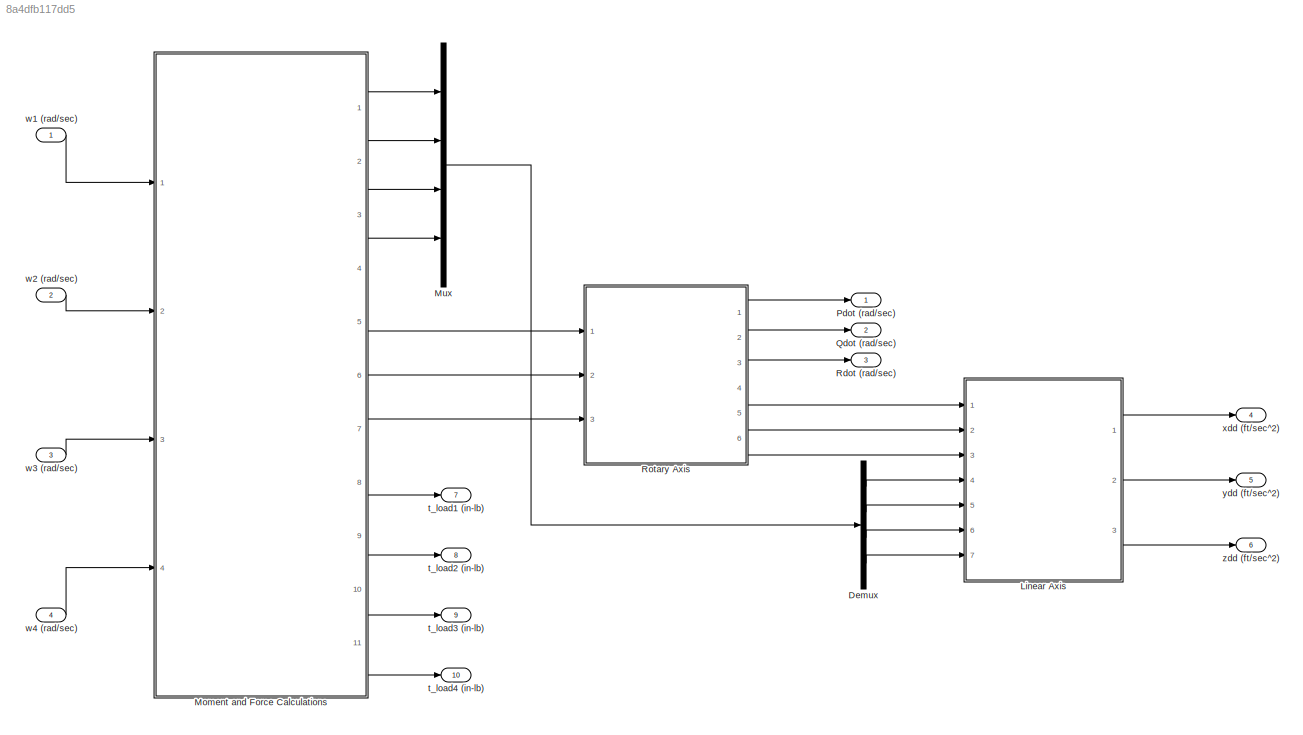
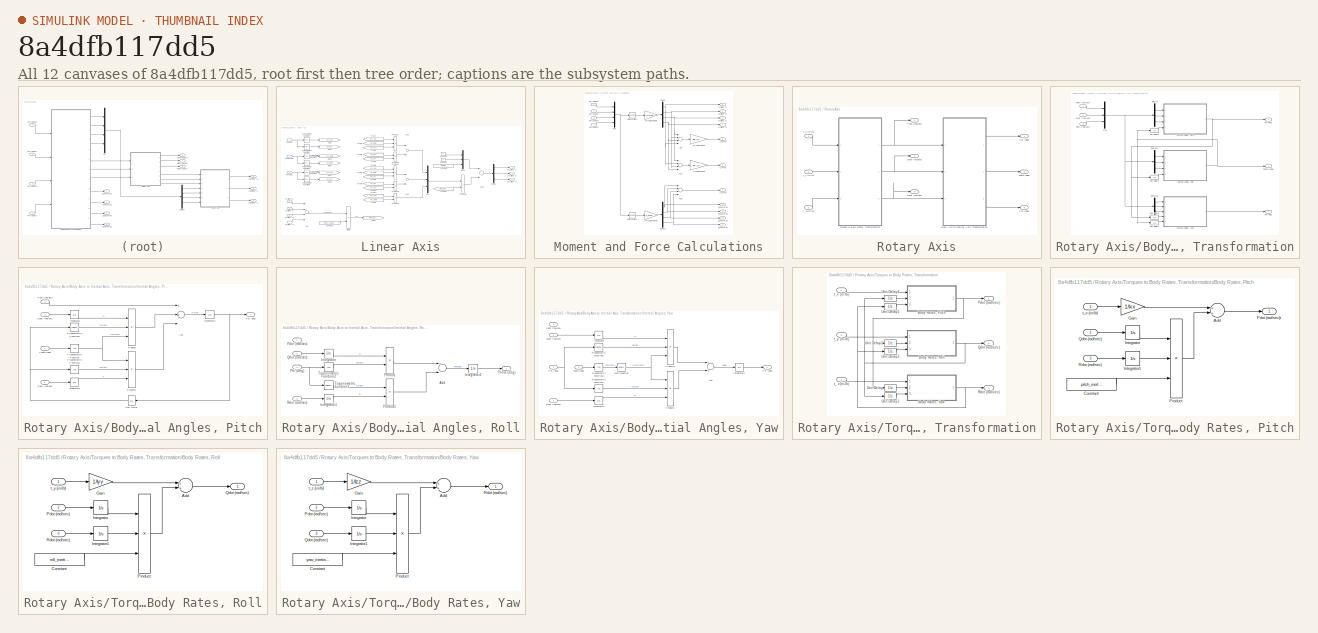
[diagram: thumbnail index - all 12 canvases of the model, root first then tree order]
MODEL slx_8a4dfb117dd5
KIND model
CONFIG AbsTol = auto
CONFIG FixedStep = auto
CONFIG MaxStep = auto
CONFIG MinStep = auto
CONFIG RelTol = 1e-3
CONFIG SampleTimeConstraint = Unconstrained
CONFIG Solver = ode45
CONFIG SolverMode = SingleTasking
CONFIG SolverName = ode45
CONFIG StartTime = 0.0
CONFIG StopTime = 10.0
BLOCK [Demux] Demux
  DisplayOption = bar
  Ports = [1, 4]
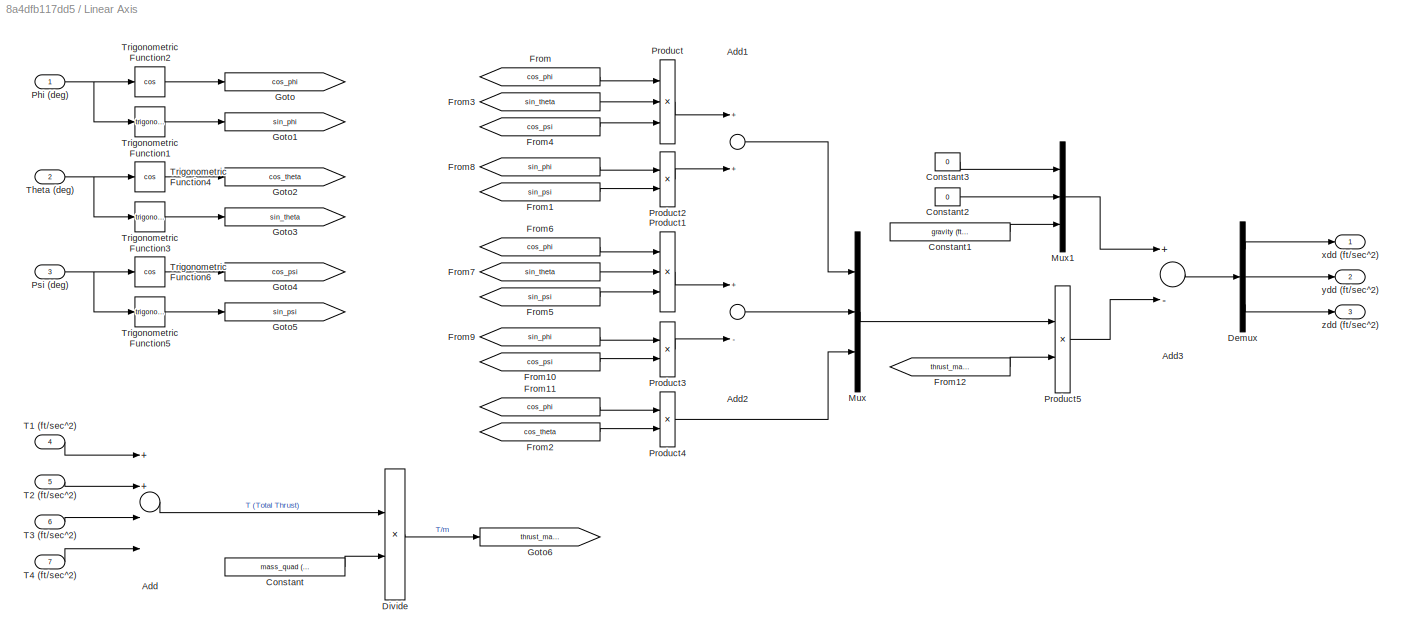
BLOCK [SubSystem] Linear Axis
  Ports = [7, 3]
  RequestExecContextInheritance = off
  Variant = off
BLOCK [Sum] Linear Axis/Add
  InputSameDT = off
  Inputs = 4
  OutDataTypeStr = Inherit: Inherit via internal rule
  Ports = [4, 1]
  SaturateOnIntegerOverflow = off
BLOCK [Sum] Linear Axis/Add1
  InputSameDT = off
  Inputs = 2
  OutDataTypeStr = Inherit: Inherit via internal rule
  Ports = [2, 1]
  SaturateOnIntegerOverflow = off
BLOCK [Sum] Linear Axis/Add2
  InputSameDT = off
  Inputs = +-
  OutDataTypeStr = Inherit: Inherit via internal rule
  Ports = [2, 1]
  SaturateOnIntegerOverflow = off
BLOCK [Sum] Linear Axis/Add3
  InputSameDT = off
  Inputs = +-
  OutDataTypeStr = Inherit: Inherit via internal rule
  Ports = [2, 1]
  SaturateOnIntegerOverflow = off
BLOCK [Constant] Linear Axis/Constant
  Value = mass_quad (lbs)
BLOCK [Constant] Linear Axis/Constant1
  Value = gravity (ft/sec^2)
BLOCK [Constant] Linear Axis/Constant2
  Value = 0
BLOCK [Constant] Linear Axis/Constant3
  Value = 0
BLOCK [Demux] Linear Axis/Demux
  DisplayOption = bar
  Outputs = 3
  Ports = [1, 3]
BLOCK [Product] Linear Axis/Divide
  InputSameDT = off
  Inputs = */
  OutDataTypeStr = Inherit: Inherit via internal rule
  Ports = [2, 1]
  RndMeth = Floor
  SaturateOnIntegerOverflow = off
BLOCK [From] Linear Axis/From
  GotoTag = cos_phi
BLOCK [From] Linear Axis/From1
  GotoTag = sin_psi
BLOCK [From] Linear Axis/From10
  GotoTag = cos_psi
BLOCK [From] Linear Axis/From11
  GotoTag = cos_phi
BLOCK [From] Linear Axis/From12
  GotoTag = thrust_mass_ratio
BLOCK [From] Linear Axis/From2
  GotoTag = cos_theta
BLOCK [From] Linear Axis/From3
  GotoTag = sin_theta
BLOCK [From] Linear Axis/From4
  GotoTag = cos_psi
BLOCK [From] Linear Axis/From5
  GotoTag = sin_psi
BLOCK [From] Linear Axis/From6
  GotoTag = cos_phi
BLOCK [From] Linear Axis/From7
  GotoTag = sin_theta
BLOCK [From] Linear Axis/From8
  GotoTag = sin_phi
BLOCK [From] Linear Axis/From9
  GotoTag = sin_phi
BLOCK [Goto] Linear Axis/Goto
  GotoTag = cos_phi
BLOCK [Goto] Linear Axis/Goto1
  GotoTag = sin_phi
BLOCK [Goto] Linear Axis/Goto2
  GotoTag = cos_theta
BLOCK [Goto] Linear Axis/Goto3
  GotoTag = sin_theta
BLOCK [Goto] Linear Axis/Goto4
  GotoTag = cos_psi
BLOCK [Goto] Linear Axis/Goto5
  GotoTag = sin_psi
BLOCK [Goto] Linear Axis/Goto6
  GotoTag = thrust_mass_ratio
BLOCK [Mux] Linear Axis/Mux
  DisplayOption = bar
  Inputs = 3
  Ports = [3, 1]
BLOCK [Mux] Linear Axis/Mux1
  DisplayOption = bar
  Inputs = 3
  Ports = [3, 1]
BLOCK [Inport] Linear Axis/Phi (deg)
  IconDisplay = Port number
BLOCK [Product] Linear Axis/Product
  InputSameDT = off
  Inputs = 3
  OutDataTypeStr = Inherit: Inherit via internal rule
  Ports = [3, 1]
  RndMeth = Floor
  SaturateOnIntegerOverflow = off
BLOCK [Product] Linear Axis/Product1
  InputSameDT = off
  Inputs = 3
  OutDataTypeStr = Inherit: Inherit via internal rule
  Ports = [3, 1]
  RndMeth = Floor
  SaturateOnIntegerOverflow = off
BLOCK [Product] Linear Axis/Product2
  InputSameDT = off
  OutDataTypeStr = Inherit: Inherit via internal rule
  Ports = [2, 1]
  RndMeth = Floor
  SaturateOnIntegerOverflow = off
BLOCK [Product] Linear Axis/Product3
  InputSameDT = off
  OutDataTypeStr = Inherit: Inherit via internal rule
  Ports = [2, 1]
  RndMeth = Floor
  SaturateOnIntegerOverflow = off
BLOCK [Product] Linear Axis/Product4
  InputSameDT = off
  OutDataTypeStr = Inherit: Inherit via internal rule
  Ports = [2, 1]
  RndMeth = Floor
  SaturateOnIntegerOverflow = off
BLOCK [Product] Linear Axis/Product5
  InputSameDT = off
  OutDataTypeStr = Inherit: Inherit via internal rule
  Ports = [2, 1]
  RndMeth = Floor
  SaturateOnIntegerOverflow = off
BLOCK [Inport] Linear Axis/Psi (deg)
  IconDisplay = Port number
  Port = 3
BLOCK [Inport] Linear Axis/T1 (ft//sec^2)
  IconDisplay = Port number
  Port = 4
BLOCK [Inport] Linear Axis/T2 (ft//sec^2)
  IconDisplay = Port number
  Port = 5
BLOCK [Inport] Linear Axis/T3 (ft//sec^2)
  IconDisplay = Port number
  Port = 6
BLOCK [Inport] Linear Axis/T4 (ft//sec^2)
  IconDisplay = Port number
  Port = 7
BLOCK [Inport] Linear Axis/Theta (deg)
  IconDisplay = Port number
  Port = 2
BLOCK [Trigonometry] Linear Axis/Trigonometric Function1
  Ports = [1, 1]
BLOCK [Trigonometry] Linear Axis/Trigonometric Function2
  Operator = cos
  Ports = [1, 1]
BLOCK [Trigonometry] Linear Axis/Trigonometric Function3
  Ports = [1, 1]
BLOCK [Trigonometry] Linear Axis/Trigonometric Function4
  Operator = cos
  Ports = [1, 1]
BLOCK [Trigonometry] Linear Axis/Trigonometric Function5
  Ports = [1, 1]
BLOCK [Trigonometry] Linear Axis/Trigonometric Function6
  Operator = cos
  Ports = [1, 1]
BLOCK [Outport] Linear Axis/xdd (ft//sec^2)
  IconDisplay = Port number
BLOCK [Outport] Linear Axis/ydd (ft//sec^2)
  IconDisplay = Port number
  Port = 2
BLOCK [Outport] Linear Axis/zdd (ft//sec^2)
  IconDisplay = Port number
  Port = 3
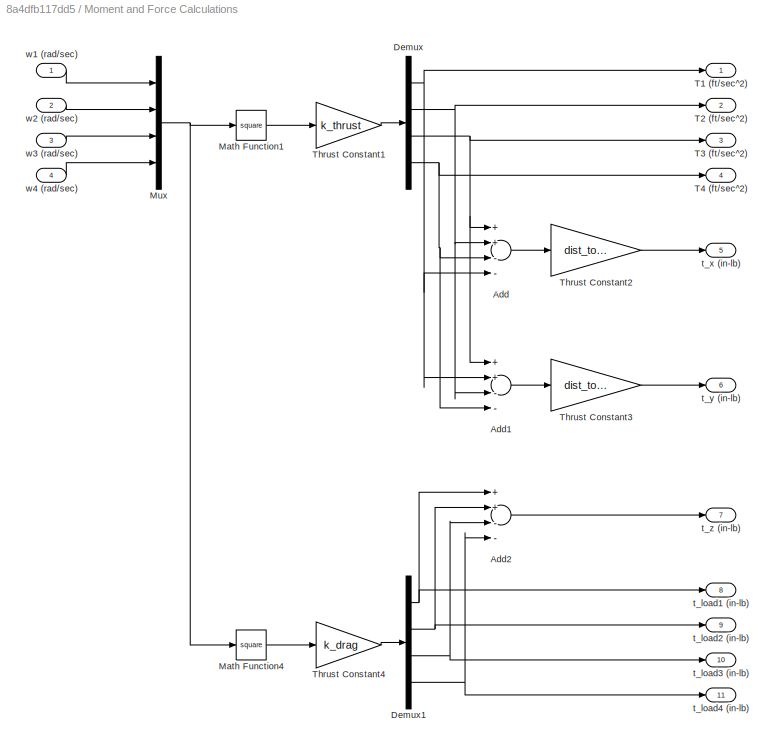
BLOCK [SubSystem] Moment and Force Calculations
  Ports = [4, 11]
  RequestExecContextInheritance = off
  Variant = off
BLOCK [Sum] Moment and Force Calculations/Add
  InputSameDT = off
  Inputs = ++--
  OutDataTypeStr = Inherit: Inherit via internal rule
  Ports = [4, 1]
  SaturateOnIntegerOverflow = off
BLOCK [Sum] Moment and Force Calculations/Add1
  InputSameDT = off
  Inputs = ++--
  OutDataTypeStr = Inherit: Inherit via internal rule
  Ports = [4, 1]
  SaturateOnIntegerOverflow = off
BLOCK [Sum] Moment and Force Calculations/Add2
  InputSameDT = off
  Inputs = ++--
  OutDataTypeStr = Inherit: Inherit via internal rule
  Ports = [4, 1]
  SaturateOnIntegerOverflow = off
BLOCK [Demux] Moment and Force Calculations/Demux
  DisplayOption = bar
  Ports = [1, 4]
BLOCK [Demux] Moment and Force Calculations/Demux1
  DisplayOption = bar
  Ports = [1, 4]
BLOCK [Math] Moment and Force Calculations/Math Function1
  Operator = square
  Ports = [1, 1]
BLOCK [Math] Moment and Force Calculations/Math Function4
  Operator = square
  Ports = [1, 1]
BLOCK [Mux] Moment and Force Calculations/Mux
  DisplayOption = bar
  Ports = [4, 1]
BLOCK [Outport] Moment and Force Calculations/T1 (ft//sec^2)
  IconDisplay = Port number
BLOCK [Outport] Moment and Force Calculations/T2 (ft//sec^2)
  IconDisplay = Port number
  Port = 2
BLOCK [Outport] Moment and Force Calculations/T3 (ft//sec^2)
  IconDisplay = Port number
  Port = 3
BLOCK [Outport] Moment and Force Calculations/T4 (ft//sec^2)
  IconDisplay = Port number
  Port = 4
BLOCK [Gain] Moment and Force Calculations/Thrust Constant1
  Gain = k_thrust
  OutDataTypeStr = Inherit: Inherit via internal rule
  ParamDataTypeStr = Inherit: Inherit via internal rule
  SaturateOnIntegerOverflow = off
BLOCK [Gain] Moment and Force Calculations/Thrust Constant2
  Gain = dist_to_cg_y
  OutDataTypeStr = Inherit: Inherit via internal rule
  ParamDataTypeStr = Inherit: Inherit via internal rule
  SaturateOnIntegerOverflow = off
BLOCK [Gain] Moment and Force Calculations/Thrust Constant3
  Gain = dist_to_cg_y
  OutDataTypeStr = Inherit: Inherit via internal rule
  ParamDataTypeStr = Inherit: Inherit via internal rule
  SaturateOnIntegerOverflow = off
BLOCK [Gain] Moment and Force Calculations/Thrust Constant4
  Gain = k_drag
  OutDataTypeStr = Inherit: Inherit via internal rule
  ParamDataTypeStr = Inherit: Inherit via internal rule
  SaturateOnIntegerOverflow = off
BLOCK [Outport] Moment and Force Calculations/t_load1 (in-lb)
  IconDisplay = Port number
  Port = 8
BLOCK [Outport] Moment and Force Calculations/t_load2 (in-lb)
  IconDisplay = Port number
  Port = 9
BLOCK [Outport] Moment and Force Calculations/t_load3 (in-lb)
  IconDisplay = Port number
  Port = 10
BLOCK [Outport] Moment and Force Calculations/t_load4 (in-lb) 
  IconDisplay = Port number
  Port = 11
BLOCK [Outport] Moment and Force Calculations/t_x (in-lb)
  IconDisplay = Port number
  Port = 5
BLOCK [Outport] Moment and Force Calculations/t_y (in-lb)
  IconDisplay = Port number
  Port = 6
BLOCK [Outport] Moment and Force Calculations/t_z (in-lb)
  IconDisplay = Port number
  Port = 7
BLOCK [Inport] Moment and Force Calculations/w1 (rad//sec)
  IconDisplay = Port number
BLOCK [Inport] Moment and Force Calculations/w2 (rad//sec)
  IconDisplay = Port number
  Port = 2
BLOCK [Inport] Moment and Force Calculations/w3 (rad//sec)
  IconDisplay = Port number
  Port = 3
BLOCK [Inport] Moment and Force Calculations/w4 (rad//sec) 
  IconDisplay = Port number
  Port = 4
BLOCK [Mux] Mux
  DisplayOption = bar
  Ports = [4, 1]
BLOCK [Outport] Pdot (rad//sec)
  IconDisplay = Port number
BLOCK [Outport] Qdot (rad//sec)
  IconDisplay = Port number
  Port = 2
BLOCK [Outport] Rdot (rad//sec)
  IconDisplay = Port number
  Port = 3
BLOCK [SubSystem] Rotary Axis
  Ports = [3, 6]
  RequestExecContextInheritance = off
  Variant = off
BLOCK [SubSystem] Rotary Axis/Body Axis to Inertial Axis, Transformation
  Ports = [3, 3]
  RequestExecContextInheritance = off
  Variant = off
BLOCK [Demux] Rotary Axis/Body Axis to Inertial Axis, Transformation/Demux
  DisplayOption = bar
  Outputs = 3
  Ports = [1, 3]
BLOCK [Demux] Rotary Axis/Body Axis to Inertial Axis, Transformation/Demux1
  DisplayOption = bar
  Outputs = 3
  Ports = [1, 3]
BLOCK [Demux] Rotary Axis/Body Axis to Inertial Axis, Transformation/Demux2
  DisplayOption = bar
  Outputs = 3
  Ports = [1, 3]
BLOCK [SubSystem] Rotary Axis/Body Axis to Inertial Axis, Transformation/Inertial Angles, Pitch
  Ports = [4, 1]
  RequestExecContextInheritance = off
  Variant = off
BLOCK [Sum] Rotary Axis/Body Axis to Inertial Axis, Transformation/Inertial Angles, Pitch/Add
  InputSameDT = off
  Inputs = 3
  OutDataTypeStr = Inherit: Inherit via internal rule
  Ports = [3, 1]
  SaturateOnIntegerOverflow = off
BLOCK [Integrator] Rotary Axis/Body Axis to Inertial Axis, Transformation/Inertial Angles, Pitch/Integrator
  Ports = [1, 1]
BLOCK [Integrator] Rotary Axis/Body Axis to Inertial Axis, Transformation/Inertial Angles, Pitch/Integrator1
  Ports = [1, 1]
BLOCK [Integrator] Rotary Axis/Body Axis to Inertial Axis, Transformation/Inertial Angles, Pitch/Integrator2
  Ports = [1, 1]
BLOCK [Inport] Rotary Axis/Body Axis to Inertial Axis, Transformation/Inertial Angles, Pitch/Pdot (rad//sec)
  IconDisplay = Port number
BLOCK [Outport] Rotary Axis/Body Axis to Inertial Axis, Transformation/Inertial Angles, Pitch/Phi (deg)
  IconDisplay = Port number
BLOCK [Product] Rotary Axis/Body Axis to Inertial Axis, Transformation/Inertial Angles, Pitch/Product
  InputSameDT = off
  Inputs = 3
  OutDataTypeStr = Inherit: Inherit via internal rule
  Ports = [3, 1]
  RndMeth = Floor
  SaturateOnIntegerOverflow = off
BLOCK [Product] Rotary Axis/Body Axis to Inertial Axis, Transformation/Inertial Angles, Pitch/Product1
  InputSameDT = off
  Inputs = 3
  OutDataTypeStr = Inherit: Inherit via internal rule
  Ports = [3, 1]
  RndMeth = Floor
  SaturateOnIntegerOverflow = off
BLOCK [Inport] Rotary Axis/Body Axis to Inertial Axis, Transformation/Inertial Angles, Pitch/Qdot (rad//sec)
  IconDisplay = Port number
  Port = 2
BLOCK [Inport] Rotary Axis/Body Axis to Inertial Axis, Transformation/Inertial Angles, Pitch/Rdot (rad//sec)
  IconDisplay = Port number
  Port = 3
BLOCK [Inport] Rotary Axis/Body Axis to Inertial Axis, Transformation/Inertial Angles, Pitch/Theta (deg)
  IconDisplay = Port number
  Port = 4
BLOCK [Trigonometry] Rotary Axis/Body Axis to Inertial Axis, Transformation/Inertial Angles, Pitch/Trigonometric Function
  Operator = tan
  Ports = [1, 1]
BLOCK [Trigonometry] Rotary Axis/Body Axis to Inertial Axis, Transformation/Inertial Angles, Pitch/Trigonometric Function1
  Operator = cos
  Ports = [1, 1]
BLOCK [Trigonometry] Rotary Axis/Body Axis to Inertial Axis, Transformation/Inertial Angles, Pitch/Trigonometric Function2
  Ports = [1, 1]
BLOCK [UnitDelay] Rotary Axis/Body Axis to Inertial Axis, Transformation/Inertial Angles, Pitch/Unit Delay
  InputProcessing = Elements as channels (sample based)
  SampleTime = -1
BLOCK [SubSystem] Rotary Axis/Body Axis to Inertial Axis, Transformation/Inertial Angles, Roll
  Ports = [4, 1]
  RequestExecContextInheritance = off
  Variant = off
BLOCK [Sum] Rotary Axis/Body Axis to Inertial Axis, Transformation/Inertial Angles, Roll/Add
  InputSameDT = off
  Inputs = +-
  OutDataTypeStr = Inherit: Inherit via internal rule
  Ports = [2, 1]
  SaturateOnIntegerOverflow = off
BLOCK [Integrator] Rotary Axis/Body Axis to Inertial Axis, Transformation/Inertial Angles, Roll/Integrator
  Ports = [1, 1]
BLOCK [Integrator] Rotary Axis/Body Axis to Inertial Axis, Transformation/Inertial Angles, Roll/Integrator1
  Ports = [1, 1]
BLOCK [Integrator] Rotary Axis/Body Axis to Inertial Axis, Transformation/Inertial Angles, Roll/Integrator2
  Ports = [1, 1]
BLOCK [Inport] Rotary Axis/Body Axis to Inertial Axis, Transformation/Inertial Angles, Roll/Pdot (rad//sec)
  IconDisplay = Port number
BLOCK [Inport] Rotary Axis/Body Axis to Inertial Axis, Transformation/Inertial Angles, Roll/Phi (deg)
  IconDisplay = Port number
  Port = 4
BLOCK [Product] Rotary Axis/Body Axis to Inertial Axis, Transformation/Inertial Angles, Roll/Product
  InputSameDT = off
  OutDataTypeStr = Inherit: Inherit via internal rule
  Ports = [2, 1]
  RndMeth = Floor
  SaturateOnIntegerOverflow = off
BLOCK [Product] Rotary Axis/Body Axis to Inertial Axis, Transformation/Inertial Angles, Roll/Product1
  InputSameDT = off
  OutDataTypeStr = Inherit: Inherit via internal rule
  Ports = [2, 1]
  RndMeth = Floor
  SaturateOnIntegerOverflow = off
BLOCK [Inport] Rotary Axis/Body Axis to Inertial Axis, Transformation/Inertial Angles, Roll/Qdot (rad//sec)
  IconDisplay = Port number
  Port = 2
BLOCK [Inport] Rotary Axis/Body Axis to Inertial Axis, Transformation/Inertial Angles, Roll/Rdot (rad//sec)
  IconDisplay = Port number
  Port = 3
BLOCK [Outport] Rotary Axis/Body Axis to Inertial Axis, Transformation/Inertial Angles, Roll/Theta (deg)
  IconDisplay = Port number
BLOCK [Trigonometry] Rotary Axis/Body Axis to Inertial Axis, Transformation/Inertial Angles, Roll/Trigonometric Function1
  Ports = [1, 1]
BLOCK [Trigonometry] Rotary Axis/Body Axis to Inertial Axis, Transformation/Inertial Angles, Roll/Trigonometric Function2
  Operator = cos
  Ports = [1, 1]
BLOCK [SubSystem] Rotary Axis/Body Axis to Inertial Axis, Transformation/Inertial Angles, Yaw
  Ports = [5, 1]
  RequestExecContextInheritance = off
  Variant = off
BLOCK [Sum] Rotary Axis/Body Axis to Inertial Axis, Transformation/Inertial Angles, Yaw/Add
  InputSameDT = off
  Inputs = 2
  OutDataTypeStr = Inherit: Inherit via internal rule
  Ports = [2, 1]
  SaturateOnIntegerOverflow = off
BLOCK [Integrator] Rotary Axis/Body Axis to Inertial Axis, Transformation/Inertial Angles, Yaw/Integrator
  Ports = [1, 1]
BLOCK [Integrator] Rotary Axis/Body Axis to Inertial Axis, Transformation/Inertial Angles, Yaw/Integrator1
  Ports = [1, 1]
BLOCK [Integrator] Rotary Axis/Body Axis to Inertial Axis, Transformation/Inertial Angles, Yaw/Integrator2
  Ports = [1, 1]
BLOCK [Math] Rotary Axis/Body Axis to Inertial Axis, Transformation/Inertial Angles, Yaw/Math Function
  Operator = reciprocal
  Ports = [1, 1]
BLOCK [Inport] Rotary Axis/Body Axis to Inertial Axis, Transformation/Inertial Angles, Yaw/Pdot (rad//sec)
  IconDisplay = Port number
BLOCK [Inport] Rotary Axis/Body Axis to Inertial Axis, Transformation/Inertial Angles, Yaw/Phi (deg)
  IconDisplay = Port number
  Port = 4
BLOCK [Product] Rotary Axis/Body Axis to Inertial Axis, Transformation/Inertial Angles, Yaw/Product1
  InputSameDT = off
  Inputs = 3
  OutDataTypeStr = Inherit: Inherit via internal rule
  Ports = [3, 1]
  RndMeth = Floor
  SaturateOnIntegerOverflow = off
BLOCK [Product] Rotary Axis/Body Axis to Inertial Axis, Transformation/Inertial Angles, Yaw/Product2
  InputSameDT = off
  Inputs = 3
  OutDataTypeStr = Inherit: Inherit via internal rule
  Ports = [3, 1]
  RndMeth = Floor
  SaturateOnIntegerOverflow = off
BLOCK [Outport] Rotary Axis/Body Axis to Inertial Axis, Transformation/Inertial Angles, Yaw/Psi (deg)
  IconDisplay = Port number
BLOCK [Inport] Rotary Axis/Body Axis to Inertial Axis, Transformation/Inertial Angles, Yaw/Qdot (rad//sec)
  IconDisplay = Port number
  Port = 2
BLOCK [Inport] Rotary Axis/Body Axis to Inertial Axis, Transformation/Inertial Angles, Yaw/Rdot (rad//sec)
  IconDisplay = Port number
  Port = 3
BLOCK [Inport] Rotary Axis/Body Axis to Inertial Axis, Transformation/Inertial Angles, Yaw/Theta (deg)
  IconDisplay = Port number
  Port = 5
BLOCK [Trigonometry] Rotary Axis/Body Axis to Inertial Axis, Transformation/Inertial Angles, Yaw/Trigonometric Function1
  Operator = cos
  Ports = [1, 1]
BLOCK [Trigonometry] Rotary Axis/Body Axis to Inertial Axis, Transformation/Inertial Angles, Yaw/Trigonometric Function2
  Ports = [1, 1]
BLOCK [Trigonometry] Rotary Axis/Body Axis to Inertial Axis, Transformation/Inertial Angles, Yaw/Trigonometric Function3
  Operator = cos
  Ports = [1, 1]
BLOCK [Mux] Rotary Axis/Body Axis to Inertial Axis, Transformation/Mux
  DisplayOption = bar
  Inputs = 3
  Ports = [3, 1]
BLOCK [Inport] Rotary Axis/Body Axis to Inertial Axis, Transformation/Pdot (rad//sec)
  IconDisplay = Port number
BLOCK [Outport] Rotary Axis/Body Axis to Inertial Axis, Transformation/Phi (deg)
  IconDisplay = Port number
BLOCK [Outport] Rotary Axis/Body Axis to Inertial Axis, Transformation/Psi (deg)
  IconDisplay = Port number
  Port = 3
BLOCK [Inport] Rotary Axis/Body Axis to Inertial Axis, Transformation/Qdot (rad//sec)
  IconDisplay = Port number
  Port = 2
BLOCK [Inport] Rotary Axis/Body Axis to Inertial Axis, Transformation/Rdot (rad//sec)
  IconDisplay = Port number
  Port = 3
BLOCK [Outport] Rotary Axis/Body Axis to Inertial Axis, Transformation/Theta (deg)
  IconDisplay = Port number
  Port = 2
BLOCK [UnitDelay] Rotary Axis/Body Axis to Inertial Axis, Transformation/Unit Delay1
  InputProcessing = Elements as channels (sample based)
  SampleTime = -1
BLOCK [UnitDelay] Rotary Axis/Body Axis to Inertial Axis, Transformation/Unit Delay2
  InputProcessing = Elements as channels (sample based)
  SampleTime = -1
BLOCK [UnitDelay] Rotary Axis/Body Axis to Inertial Axis, Transformation/Unit Delay3
  InputProcessing = Elements as channels (sample based)
  SampleTime = -1
BLOCK [UnitDelay] Rotary Axis/Body Axis to Inertial Axis, Transformation/Unit Delay4
  InputProcessing = Elements as channels (sample based)
  SampleTime = -1
BLOCK [Outport] Rotary Axis/Pdot (rad//sec)
  IconDisplay = Port number
BLOCK [Outport] Rotary Axis/Phi (deg)
  IconDisplay = Port number
  Port = 4
BLOCK [Outport] Rotary Axis/Psi (deg)
  IconDisplay = Port number
  Port = 6
BLOCK [Outport] Rotary Axis/Qdot (rad//sec)
  IconDisplay = Port number
  Port = 2
BLOCK [Outport] Rotary Axis/Rdot (rad//sec)
  IconDisplay = Port number
  Port = 3
BLOCK [Outport] Rotary Axis/Theta (deg)
  IconDisplay = Port number
  Port = 5
BLOCK [SubSystem] Rotary Axis/Torques to Body Rates, Transformation
  Ports = [3, 3]
  RequestExecContextInheritance = off
  Variant = off
BLOCK [SubSystem] Rotary Axis/Torques to Body Rates, Transformation/Body Rates, Pitch
  Ports = [3, 1]
  RequestExecContextInheritance = off
  Variant = off
BLOCK [Sum] Rotary Axis/Torques to Body Rates, Transformation/Body Rates, Pitch/Add
  InputSameDT = off
  Inputs = 2
  OutDataTypeStr = Inherit: Inherit via internal rule
  Ports = [2, 1]
  SaturateOnIntegerOverflow = off
BLOCK [Constant] Rotary Axis/Torques to Body Rates, Transformation/Body Rates, Pitch/Constant
  Value = pitch_inertia_ratio
BLOCK [Gain] Rotary Axis/Torques to Body Rates, Transformation/Body Rates, Pitch/Gain
  Gain = 1/Ixx
  OutDataTypeStr = Inherit: Inherit via internal rule
  ParamDataTypeStr = Inherit: Inherit via internal rule
  SaturateOnIntegerOverflow = off
BLOCK [Integrator] Rotary Axis/Torques to Body Rates, Transformation/Body Rates, Pitch/Integrator
  Ports = [1, 1]
BLOCK [Integrator] Rotary Axis/Torques to Body Rates, Transformation/Body Rates, Pitch/Integrator1
  Ports = [1, 1]
BLOCK [Outport] Rotary Axis/Torques to Body Rates, Transformation/Body Rates, Pitch/Pdot (rad//sec)t
  IconDisplay = Port number
BLOCK [Product] Rotary Axis/Torques to Body Rates, Transformation/Body Rates, Pitch/Product
  InputSameDT = off
  Inputs = 3
  OutDataTypeStr = Inherit: Inherit via internal rule
  Ports = [3, 1]
  RndMeth = Floor
  SaturateOnIntegerOverflow = off
BLOCK [Inport] Rotary Axis/Torques to Body Rates, Transformation/Body Rates, Pitch/Qdot (rad//sec)
  IconDisplay = Port number
  Port = 2
BLOCK [Inport] Rotary Axis/Torques to Body Rates, Transformation/Body Rates, Pitch/Rdot (rad//sec)
  IconDisplay = Port number
  Port = 3
BLOCK [Inport] Rotary Axis/Torques to Body Rates, Transformation/Body Rates, Pitch/t_x (in-lb)
  IconDisplay = Port number
BLOCK [SubSystem] Rotary Axis/Torques to Body Rates, Transformation/Body Rates, Roll
  Ports = [3, 1]
  RequestExecContextInheritance = off
  Variant = off
BLOCK [Sum] Rotary Axis/Torques to Body Rates, Transformation/Body Rates, Roll/Add
  InputSameDT = off
  Inputs = 2
  OutDataTypeStr = Inherit: Inherit via internal rule
  Ports = [2, 1]
  SaturateOnIntegerOverflow = off
BLOCK [Constant] Rotary Axis/Torques to Body Rates, Transformation/Body Rates, Roll/Constant
  Value = roll_inertia_ratio
BLOCK [Gain] Rotary Axis/Torques to Body Rates, Transformation/Body Rates, Roll/Gain
  Gain = 1/Iyy
  OutDataTypeStr = Inherit: Inherit via internal rule
  ParamDataTypeStr = Inherit: Inherit via internal rule
  SaturateOnIntegerOverflow = off
BLOCK [Integrator] Rotary Axis/Torques to Body Rates, Transformation/Body Rates, Roll/Integrator
  Ports = [1, 1]
BLOCK [Integrator] Rotary Axis/Torques to Body Rates, Transformation/Body Rates, Roll/Integrator1
  Ports = [1, 1]
BLOCK [Inport] Rotary Axis/Torques to Body Rates, Transformation/Body Rates, Roll/Pdot (rad//sec)
  IconDisplay = Port number
  Port = 2
BLOCK [Product] Rotary Axis/Torques to Body Rates, Transformation/Body Rates, Roll/Product
  InputSameDT = off
  Inputs = 3
  OutDataTypeStr = Inherit: Inherit via internal rule
  Ports = [3, 1]
  RndMeth = Floor
  SaturateOnIntegerOverflow = off
BLOCK [Outport] Rotary Axis/Torques to Body Rates, Transformation/Body Rates, Roll/Qdot (rad//sec)
  IconDisplay = Port number
BLOCK [Inport] Rotary Axis/Torques to Body Rates, Transformation/Body Rates, Roll/Rdot (rad//sec)
  IconDisplay = Port number
  Port = 3
BLOCK [Inport] Rotary Axis/Torques to Body Rates, Transformation/Body Rates, Roll/t_y (in-lb)
  IconDisplay = Port number
BLOCK [SubSystem] Rotary Axis/Torques to Body Rates, Transformation/Body Rates, Yaw
  Ports = [3, 1]
  RequestExecContextInheritance = off
  Variant = off
BLOCK [Sum] Rotary Axis/Torques to Body Rates, Transformation/Body Rates, Yaw/Add
  InputSameDT = off
  Inputs = 2
  OutDataTypeStr = Inherit: Inherit via internal rule
  Ports = [2, 1]
  SaturateOnIntegerOverflow = off
BLOCK [Constant] Rotary Axis/Torques to Body Rates, Transformation/Body Rates, Yaw/Constant
  Value = yaw_inertia_ratio
BLOCK [Gain] Rotary Axis/Torques to Body Rates, Transformation/Body Rates, Yaw/Gain
  Gain = 1/Izz
  OutDataTypeStr = Inherit: Inherit via internal rule
  ParamDataTypeStr = Inherit: Inherit via internal rule
  SaturateOnIntegerOverflow = off
BLOCK [Integrator] Rotary Axis/Torques to Body Rates, Transformation/Body Rates, Yaw/Integrator
  Ports = [1, 1]
BLOCK [Integrator] Rotary Axis/Torques to Body Rates, Transformation/Body Rates, Yaw/Integrator1
  Ports = [1, 1]
BLOCK [Inport] Rotary Axis/Torques to Body Rates, Transformation/Body Rates, Yaw/Pdot (rad//sec)
  IconDisplay = Port number
  Port = 2
BLOCK [Product] Rotary Axis/Torques to Body Rates, Transformation/Body Rates, Yaw/Product
  InputSameDT = off
  Inputs = 3
  OutDataTypeStr = Inherit: Inherit via internal rule
  Ports = [3, 1]
  RndMeth = Floor
  SaturateOnIntegerOverflow = off
BLOCK [Inport] Rotary Axis/Torques to Body Rates, Transformation/Body Rates, Yaw/Qdot (rad//sec)
  IconDisplay = Port number
  Port = 3
BLOCK [Outport] Rotary Axis/Torques to Body Rates, Transformation/Body Rates, Yaw/Rdot (rad//sec)
  IconDisplay = Port number
BLOCK [Inport] Rotary Axis/Torques to Body Rates, Transformation/Body Rates, Yaw/t_z (in-lb)
  IconDisplay = Port number
BLOCK [Outport] Rotary Axis/Torques to Body Rates, Transformation/Pdot (rad//sec)
  IconDisplay = Port number
BLOCK [Outport] Rotary Axis/Torques to Body Rates, Transformation/Qdot (rad//sec)
  IconDisplay = Port number
  Port = 2
BLOCK [Outport] Rotary Axis/Torques to Body Rates, Transformation/Rdot (rad//sec)
  IconDisplay = Port number
  Port = 3
BLOCK [UnitDelay] Rotary Axis/Torques to Body Rates, Transformation/Unit Delay
  InputProcessing = Elements as channels (sample based)
  SampleTime = -1
BLOCK [UnitDelay] Rotary Axis/Torques to Body Rates, Transformation/Unit Delay1
  InputProcessing = Elements as channels (sample based)
  SampleTime = -1
BLOCK [UnitDelay] Rotary Axis/Torques to Body Rates, Transformation/Unit Delay2
  InputProcessing = Elements as channels (sample based)
  SampleTime = -1
BLOCK [UnitDelay] Rotary Axis/Torques to Body Rates, Transformation/Unit Delay3
  InputProcessing = Elements as channels (sample based)
  SampleTime = -1
BLOCK [UnitDelay] Rotary Axis/Torques to Body Rates, Transformation/Unit Delay4
  InputProcessing = Elements as channels (sample based)
  SampleTime = -1
BLOCK [UnitDelay] Rotary Axis/Torques to Body Rates, Transformation/Unit Delay5
  InputProcessing = Elements as channels (sample based)
  SampleTime = -1
BLOCK [Inport] Rotary Axis/Torques to Body Rates, Transformation/t_ z(in-lb)
  IconDisplay = Port number
  Port = 3
BLOCK [Inport] Rotary Axis/Torques to Body Rates, Transformation/t_x (in-lb)
  IconDisplay = Port number
BLOCK [Inport] Rotary Axis/Torques to Body Rates, Transformation/t_y (in-lb)
  IconDisplay = Port number
  Port = 2
BLOCK [Inport] Rotary Axis/t_ z(in-lb)
  IconDisplay = Port number
  Port = 3
BLOCK [Inport] Rotary Axis/t_x (in-lb)
  IconDisplay = Port number
BLOCK [Inport] Rotary Axis/t_y (in-lb)
  IconDisplay = Port number
  Port = 2
BLOCK [Outport] t_load1 (in-lb)
  IconDisplay = Port number
  Port = 7
BLOCK [Outport] t_load2 (in-lb)
  IconDisplay = Port number
  Port = 8
BLOCK [Outport] t_load3 (in-lb)
  IconDisplay = Port number
  Port = 9
BLOCK [Outport] t_load4 (in-lb) 
  IconDisplay = Port number
  Port = 10
BLOCK [Inport] w1 (rad//sec)
  IconDisplay = Port number
BLOCK [Inport] w2 (rad//sec)
  IconDisplay = Port number
  Port = 2
BLOCK [Inport] w3 (rad//sec)
  IconDisplay = Port number
  Port = 3
BLOCK [Inport] w4 (rad//sec) 
  IconDisplay = Port number
  Port = 4
BLOCK [Outport] xdd (ft//sec^2)
  IconDisplay = Port number
  Port = 4
BLOCK [Outport] ydd (ft//sec^2)
  IconDisplay = Port number
  Port = 5
BLOCK [Outport] zdd (ft//sec^2)
  IconDisplay = Port number
  Port = 6
LINE Demux:1 -> Linear Axis:4
LINE Demux:2 -> Linear Axis:5
LINE Demux:3 -> Linear Axis:6
LINE Demux:4 -> Linear Axis:7
LINE Linear Axis/Add1:1 -> Linear Axis/Mux:1
LINE Linear Axis/Add2:1 -> Linear Axis/Mux:2
LINE Linear Axis/Add3:1 -> Linear Axis/Demux:1
LINE Linear Axis/Add:1 -> Linear Axis/Divide:1
LINE Linear Axis/Constant1:1 -> Linear Axis/Mux1:3
LINE Linear Axis/Constant2:1 -> Linear Axis/Mux1:2
LINE Linear Axis/Constant3:1 -> Linear Axis/Mux1:1
LINE Linear Axis/Constant:1 -> Linear Axis/Divide:2
LINE Linear Axis/Demux:1 -> Linear Axis/xdd (ft//sec^2):1
LINE Linear Axis/Demux:2 -> Linear Axis/ydd (ft//sec^2):1
LINE Linear Axis/Demux:3 -> Linear Axis/zdd (ft//sec^2):1
LINE Linear Axis/Divide:1 -> Linear Axis/Goto6:1
LINE Linear Axis/From10:1 -> Linear Axis/Product3:2
LINE Linear Axis/From11:1 -> Linear Axis/Product4:1
LINE Linear Axis/From12:1 -> Linear Axis/Product5:2
LINE Linear Axis/From1:1 -> Linear Axis/Product2:2
LINE Linear Axis/From2:1 -> Linear Axis/Product4:2
LINE Linear Axis/From3:1 -> Linear Axis/Product:2
LINE Linear Axis/From4:1 -> Linear Axis/Product:3
LINE Linear Axis/From5:1 -> Linear Axis/Product1:3
LINE Linear Axis/From6:1 -> Linear Axis/Product1:1
LINE Linear Axis/From7:1 -> Linear Axis/Product1:2
LINE Linear Axis/From8:1 -> Linear Axis/Product2:1
LINE Linear Axis/From9:1 -> Linear Axis/Product3:1
LINE Linear Axis/From:1 -> Linear Axis/Product:1
LINE Linear Axis/Mux1:1 -> Linear Axis/Add3:1
LINE Linear Axis/Mux:1 -> Linear Axis/Product5:1
NET Linear Axis/Phi (deg):1 -> Linear Axis/Trigonometric Function1:1, Linear Axis/Trigonometric Function2:1
LINE Linear Axis/Product1:1 -> Linear Axis/Add2:1
LINE Linear Axis/Product2:1 -> Linear Axis/Add1:2
LINE Linear Axis/Product3:1 -> Linear Axis/Add2:2
LINE Linear Axis/Product4:1 -> Linear Axis/Mux:3
LINE Linear Axis/Product5:1 -> Linear Axis/Add3:2
LINE Linear Axis/Product:1 -> Linear Axis/Add1:1
NET Linear Axis/Psi (deg):1 -> Linear Axis/Trigonometric Function5:1, Linear Axis/Trigonometric Function6:1
LINE Linear Axis/T1 (ft//sec^2):1 -> Linear Axis/Add:1
LINE Linear Axis/T2 (ft//sec^2):1 -> Linear Axis/Add:2
LINE Linear Axis/T3 (ft//sec^2):1 -> Linear Axis/Add:3
LINE Linear Axis/T4 (ft//sec^2):1 -> Linear Axis/Add:4
NET Linear Axis/Theta (deg):1 -> Linear Axis/Trigonometric Function3:1, Linear Axis/Trigonometric Function4:1
LINE Linear Axis/Trigonometric Function1:1 -> Linear Axis/Goto1:1
LINE Linear Axis/Trigonometric Function2:1 -> Linear Axis/Goto:1
LINE Linear Axis/Trigonometric Function3:1 -> Linear Axis/Goto3:1
LINE Linear Axis/Trigonometric Function4:1 -> Linear Axis/Goto2:1
LINE Linear Axis/Trigonometric Function5:1 -> Linear Axis/Goto5:1
LINE Linear Axis/Trigonometric Function6:1 -> Linear Axis/Goto4:1
LINE Linear Axis:1 -> xdd (ft//sec^2):1
LINE Linear Axis:2 -> ydd (ft//sec^2):1
LINE Linear Axis:3 -> zdd (ft//sec^2):1
LINE Moment and Force Calculations/Add1:1 -> Moment and Force Calculations/Thrust Constant3:1
LINE Moment and Force Calculations/Add2:1 -> Moment and Force Calculations/t_z (in-lb):1
LINE Moment and Force Calculations/Add:1 -> Moment and Force Calculations/Thrust Constant2:1
NET Moment and Force Calculations/Demux1:1 -> Moment and Force Calculations/Add2:1, Moment and Force Calculations/t_load1 (in-lb):1
NET Moment and Force Calculations/Demux1:2 -> Moment and Force Calculations/Add2:2, Moment and Force Calculations/t_load2 (in-lb):1
NET Moment and Force Calculations/Demux1:3 -> Moment and Force Calculations/Add2:3, Moment and Force Calculations/t_load3 (in-lb):1
NET Moment and Force Calculations/Demux1:4 -> Moment and Force Calculations/Add2:4, Moment and Force Calculations/t_load4 (in-lb) :1
NET Moment and Force Calculations/Demux:1 -> Moment and Force Calculations/Add1:2, Moment and Force Calculations/Add:4, Moment and Force Calculations/T1 (ft//sec^2):1
NET Moment and Force Calculations/Demux:2 -> Moment and Force Calculations/Add1:3, Moment and Force Calculations/Add:2, Moment and Force Calculations/T2 (ft//sec^2):1
NET Moment and Force Calculations/Demux:3 -> Moment and Force Calculations/Add1:1, Moment and Force Calculations/Add:1, Moment and Force Calculations/T3 (ft//sec^2):1
NET Moment and Force Calculations/Demux:4 -> Moment and Force Calculations/Add1:4, Moment and Force Calculations/Add:3, Moment and Force Calculations/T4 (ft//sec^2):1
LINE Moment and Force Calculations/Math Function1:1 -> Moment and Force Calculations/Thrust Constant1:1
LINE Moment and Force Calculations/Math Function4:1 -> Moment and Force Calculations/Thrust Constant4:1
NET Moment and Force Calculations/Mux:1 -> Moment and Force Calculations/Math Function1:1, Moment and Force Calculations/Math Function4:1
LINE Moment and Force Calculations/Thrust Constant1:1 -> Moment and Force Calculations/Demux:1
LINE Moment and Force Calculations/Thrust Constant2:1 -> Moment and Force Calculations/t_x (in-lb):1
LINE Moment and Force Calculations/Thrust Constant3:1 -> Moment and Force Calculations/t_y (in-lb):1
LINE Moment and Force Calculations/Thrust Constant4:1 -> Moment and Force Calculations/Demux1:1
LINE Moment and Force Calculations/w1 (rad//sec):1 -> Moment and Force Calculations/Mux:1
LINE Moment and Force Calculations/w2 (rad//sec):1 -> Moment and Force Calculations/Mux:2
LINE Moment and Force Calculations/w3 (rad//sec):1 -> Moment and Force Calculations/Mux:3
LINE Moment and Force Calculations/w4 (rad//sec) :1 -> Moment and Force Calculations/Mux:4
LINE Moment and Force Calculations:1 -> Mux:1
LINE Moment and Force Calculations:10 -> t_load3 (in-lb):1
LINE Moment and Force Calculations:11 -> t_load4 (in-lb) :1
LINE Moment and Force Calculations:2 -> Mux:2
LINE Moment and Force Calculations:3 -> Mux:3
LINE Moment and Force Calculations:4 -> Mux:4
LINE Moment and Force Calculations:5 -> Rotary Axis:1
LINE Moment and Force Calculations:6 -> Rotary Axis:2
LINE Moment and Force Calculations:7 -> Rotary Axis:3
LINE Moment and Force Calculations:8 -> t_load1 (in-lb):1
LINE Moment and Force Calculations:9 -> t_load2 (in-lb):1
LINE Mux:1 -> Demux:1
LINE Rotary Axis/Body Axis to Inertial Axis, Transformation/Demux1:1 -> Rotary Axis/Body Axis to Inertial Axis, Transformation/Inertial Angles, Roll:1
LINE Rotary Axis/Body Axis to Inertial Axis, Transformation/Demux1:2 -> Rotary Axis/Body Axis to Inertial Axis, Transformation/Inertial Angles, Roll:2
LINE Rotary Axis/Body Axis to Inertial Axis, Transformation/Demux1:3 -> Rotary Axis/Body Axis to Inertial Axis, Transformation/Inertial Angles, Roll:3
LINE Rotary Axis/Body Axis to Inertial Axis, Transformation/Demux2:1 -> Rotary Axis/Body Axis to Inertial Axis, Transformation/Inertial Angles, Yaw:1
LINE Rotary Axis/Body Axis to Inertial Axis, Transformation/Demux2:2 -> Rotary Axis/Body Axis to Inertial Axis, Transformation/Inertial Angles, Yaw:2
LINE Rotary Axis/Body Axis to Inertial Axis, Transformation/Demux2:3 -> Rotary Axis/Body Axis to Inertial Axis, Transformation/Inertial Angles, Yaw:3
LINE Rotary Axis/Body Axis to Inertial Axis, Transformation/Demux:1 -> Rotary Axis/Body Axis to Inertial Axis, Transformation/Inertial Angles, Pitch:1
LINE Rotary Axis/Body Axis to Inertial Axis, Transformation/Demux:2 -> Rotary Axis/Body Axis to Inertial Axis, Transformation/Inertial Angles, Pitch:2
LINE Rotary Axis/Body Axis to Inertial Axis, Transformation/Demux:3 -> Rotary Axis/Body Axis to Inertial Axis, Transformation/Inertial Angles, Pitch:3
LINE Rotary Axis/Body Axis to Inertial Axis, Transformation/Inertial Angles, Pitch/Add:1 -> Rotary Axis/Body Axis to Inertial Axis, Transformation/Inertial Angles, Pitch/Integrator2:1
LINE Rotary Axis/Body Axis to Inertial Axis, Transformation/Inertial Angles, Pitch/Integrator1:1 -> Rotary Axis/Body Axis to Inertial Axis, Transformation/Inertial Angles, Pitch/Product1:3
NET Rotary Axis/Body Axis to Inertial Axis, Transformation/Inertial Angles, Pitch/Integrator2:1 -> Rotary Axis/Body Axis to Inertial Axis, Transformation/Inertial Angles, Pitch/Phi (deg):1, Rotary Axis/Body Axis to Inertial Axis, Transformation/Inertial Angles, Pitch/Unit Delay:1
LINE Rotary Axis/Body Axis to Inertial Axis, Transformation/Inertial Angles, Pitch/Integrator:1 -> Rotary Axis/Body Axis to Inertial Axis, Transformation/Inertial Angles, Pitch/Product:1
LINE Rotary Axis/Body Axis to Inertial Axis, Transformation/Inertial Angles, Pitch/Pdot (rad//sec):1 -> Rotary Axis/Body Axis to Inertial Axis, Transformation/Inertial Angles, Pitch/Add:1
LINE Rotary Axis/Body Axis to Inertial Axis, Transformation/Inertial Angles, Pitch/Product1:1 -> Rotary Axis/Body Axis to Inertial Axis, Transformation/Inertial Angles, Pitch/Add:3
LINE Rotary Axis/Body Axis to Inertial Axis, Transformation/Inertial Angles, Pitch/Product:1 -> Rotary Axis/Body Axis to Inertial Axis, Transformation/Inertial Angles, Pitch/Add:2
LINE Rotary Axis/Body Axis to Inertial Axis, Transformation/Inertial Angles, Pitch/Qdot (rad//sec):1 -> Rotary Axis/Body Axis to Inertial Axis, Transformation/Inertial Angles, Pitch/Integrator:1
LINE Rotary Axis/Body Axis to Inertial Axis, Transformation/Inertial Angles, Pitch/Rdot (rad//sec):1 -> Rotary Axis/Body Axis to Inertial Axis, Transformation/Inertial Angles, Pitch/Integrator1:1
LINE Rotary Axis/Body Axis to Inertial Axis, Transformation/Inertial Angles, Pitch/Theta (deg):1 -> Rotary Axis/Body Axis to Inertial Axis, Transformation/Inertial Angles, Pitch/Trigonometric Function:1
LINE Rotary Axis/Body Axis to Inertial Axis, Transformation/Inertial Angles, Pitch/Trigonometric Function1:1 -> Rotary Axis/Body Axis to Inertial Axis, Transformation/Inertial Angles, Pitch/Product1:2
LINE Rotary Axis/Body Axis to Inertial Axis, Transformation/Inertial Angles, Pitch/Trigonometric Function2:1 -> Rotary Axis/Body Axis to Inertial Axis, Transformation/Inertial Angles, Pitch/Product:2
NET Rotary Axis/Body Axis to Inertial Axis, Transformation/Inertial Angles, Pitch/Trigonometric Function:1 -> Rotary Axis/Body Axis to Inertial Axis, Transformation/Inertial Angles, Pitch/Product1:1, Rotary Axis/Body Axis to Inertial Axis, Transformation/Inertial Angles, Pitch/Product:3
NET Rotary Axis/Body Axis to Inertial Axis, Transformation/Inertial Angles, Pitch/Unit Delay:1 -> Rotary Axis/Body Axis to Inertial Axis, Transformation/Inertial Angles, Pitch/Trigonometric Function1:1, Rotary Axis/Body Axis to Inertial Axis, Transformation/Inertial Angles, Pitch/Trigonometric Function2:1
NET Rotary Axis/Body Axis to Inertial Axis, Transformation/Inertial Angles, Pitch:1 -> Rotary Axis/Body Axis to Inertial Axis, Transformation/Phi (deg):1, Rotary Axis/Body Axis to Inertial Axis, Transformation/Unit Delay2:1, Rotary Axis/Body Axis to Inertial Axis, Transformation/Unit Delay4:1
LINE Rotary Axis/Body Axis to Inertial Axis, Transformation/Inertial Angles, Roll/Add:1 -> Rotary Axis/Body Axis to Inertial Axis, Transformation/Inertial Angles, Roll/Integrator2:1
LINE Rotary Axis/Body Axis to Inertial Axis, Transformation/Inertial Angles, Roll/Integrator1:1 -> Rotary Axis/Body Axis to Inertial Axis, Transformation/Inertial Angles, Roll/Product1:2
LINE Rotary Axis/Body Axis to Inertial Axis, Transformation/Inertial Angles, Roll/Integrator2:1 -> Rotary Axis/Body Axis to Inertial Axis, Transformation/Inertial Angles, Roll/Theta (deg):1
LINE Rotary Axis/Body Axis to Inertial Axis, Transformation/Inertial Angles, Roll/Integrator:1 -> Rotary Axis/Body Axis to Inertial Axis, Transformation/Inertial Angles, Roll/Product:1
NET Rotary Axis/Body Axis to Inertial Axis, Transformation/Inertial Angles, Roll/Phi (deg):1 -> Rotary Axis/Body Axis to Inertial Axis, Transformation/Inertial Angles, Roll/Trigonometric Function1:1, Rotary Axis/Body Axis to Inertial Axis, Transformation/Inertial Angles, Roll/Trigonometric Function2:1
LINE Rotary Axis/Body Axis to Inertial Axis, Transformation/Inertial Angles, Roll/Product1:1 -> Rotary Axis/Body Axis to Inertial Axis, Transformation/Inertial Angles, Roll/Add:2
LINE Rotary Axis/Body Axis to Inertial Axis, Transformation/Inertial Angles, Roll/Product:1 -> Rotary Axis/Body Axis to Inertial Axis, Transformation/Inertial Angles, Roll/Add:1
LINE Rotary Axis/Body Axis to Inertial Axis, Transformation/Inertial Angles, Roll/Qdot (rad//sec):1 -> Rotary Axis/Body Axis to Inertial Axis, Transformation/Inertial Angles, Roll/Integrator:1
LINE Rotary Axis/Body Axis to Inertial Axis, Transformation/Inertial Angles, Roll/Rdot (rad//sec):1 -> Rotary Axis/Body Axis to Inertial Axis, Transformation/Inertial Angles, Roll/Integrator1:1
LINE Rotary Axis/Body Axis to Inertial Axis, Transformation/Inertial Angles, Roll/Trigonometric Function1:1 -> Rotary Axis/Body Axis to Inertial Axis, Transformation/Inertial Angles, Roll/Product1:1
LINE Rotary Axis/Body Axis to Inertial Axis, Transformation/Inertial Angles, Roll/Trigonometric Function2:1 -> Rotary Axis/Body Axis to Inertial Axis, Transformation/Inertial Angles, Roll/Product:2
NET Rotary Axis/Body Axis to Inertial Axis, Transformation/Inertial Angles, Roll:1 -> Rotary Axis/Body Axis to Inertial Axis, Transformation/Theta (deg):1, Rotary Axis/Body Axis to Inertial Axis, Transformation/Unit Delay1:1, Rotary Axis/Body Axis to Inertial Axis, Transformation/Unit Delay3:1
LINE Rotary Axis/Body Axis to Inertial Axis, Transformation/Inertial Angles, Yaw/Add:1 -> Rotary Axis/Body Axis to Inertial Axis, Transformation/Inertial Angles, Yaw/Integrator2:1
LINE Rotary Axis/Body Axis to Inertial Axis, Transformation/Inertial Angles, Yaw/Integrator1:1 -> Rotary Axis/Body Axis to Inertial Axis, Transformation/Inertial Angles, Yaw/Product1:3
LINE Rotary Axis/Body Axis to Inertial Axis, Transformation/Inertial Angles, Yaw/Integrator2:1 -> Rotary Axis/Body Axis to Inertial Axis, Transformation/Inertial Angles, Yaw/Psi (deg):1
LINE Rotary Axis/Body Axis to Inertial Axis, Transformation/Inertial Angles, Yaw/Integrator:1 -> Rotary Axis/Body Axis to Inertial Axis, Transformation/Inertial Angles, Yaw/Product2:1
NET Rotary Axis/Body Axis to Inertial Axis, Transformation/Inertial Angles, Yaw/Math Function:1 -> Rotary Axis/Body Axis to Inertial Axis, Transformation/Inertial Angles, Yaw/Product1:1, Rotary Axis/Body Axis to Inertial Axis, Transformation/Inertial Angles, Yaw/Product2:3
NET Rotary Axis/Body Axis to Inertial Axis, Transformation/Inertial Angles, Yaw/Phi (deg):1 -> Rotary Axis/Body Axis to Inertial Axis, Transformation/Inertial Angles, Yaw/Trigonometric Function1:1, Rotary Axis/Body Axis to Inertial Axis, Transformation/Inertial Angles, Yaw/Trigonometric Function2:1
LINE Rotary Axis/Body Axis to Inertial Axis, Transformation/Inertial Angles, Yaw/Product1:1 -> Rotary Axis/Body Axis to Inertial Axis, Transformation/Inertial Angles, Yaw/Add:2
LINE Rotary Axis/Body Axis to Inertial Axis, Transformation/Inertial Angles, Yaw/Product2:1 -> Rotary Axis/Body Axis to Inertial Axis, Transformation/Inertial Angles, Yaw/Add:1
LINE Rotary Axis/Body Axis to Inertial Axis, Transformation/Inertial Angles, Yaw/Qdot (rad//sec):1 -> Rotary Axis/Body Axis to Inertial Axis, Transformation/Inertial Angles, Yaw/Integrator:1
LINE Rotary Axis/Body Axis to Inertial Axis, Transformation/Inertial Angles, Yaw/Rdot (rad//sec):1 -> Rotary Axis/Body Axis to Inertial Axis, Transformation/Inertial Angles, Yaw/Integrator1:1
LINE Rotary Axis/Body Axis to Inertial Axis, Transformation/Inertial Angles, Yaw/Theta (deg):1 -> Rotary Axis/Body Axis to Inertial Axis, Transformation/Inertial Angles, Yaw/Trigonometric Function3:1
LINE Rotary Axis/Body Axis to Inertial Axis, Transformation/Inertial Angles, Yaw/Trigonometric Function1:1 -> Rotary Axis/Body Axis to Inertial Axis, Transformation/Inertial Angles, Yaw/Product1:2
LINE Rotary Axis/Body Axis to Inertial Axis, Transformation/Inertial Angles, Yaw/Trigonometric Function2:1 -> Rotary Axis/Body Axis to Inertial Axis, Transformation/Inertial Angles, Yaw/Product2:2
LINE Rotary Axis/Body Axis to Inertial Axis, Transformation/Inertial Angles, Yaw/Trigonometric Function3:1 -> Rotary Axis/Body Axis to Inertial Axis, Transformation/Inertial Angles, Yaw/Math Function:1
LINE Rotary Axis/Body Axis to Inertial Axis, Transformation/Inertial Angles, Yaw:1 -> Rotary Axis/Body Axis to Inertial Axis, Transformation/Psi (deg):1
NET Rotary Axis/Body Axis to Inertial Axis, Transformation/Mux:1 -> Rotary Axis/Body Axis to Inertial Axis, Transformation/Demux1:1, Rotary Axis/Body Axis to Inertial Axis, Transformation/Demux2:1, Rotary Axis/Body Axis to Inertial Axis, Transformation/Demux:1
LINE Rotary Axis/Body Axis to Inertial Axis, Transformation/Pdot (rad//sec):1 -> Rotary Axis/Body Axis to Inertial Axis, Transformation/Mux:1
LINE Rotary Axis/Body Axis to Inertial Axis, Transformation/Qdot (rad//sec):1 -> Rotary Axis/Body Axis to Inertial Axis, Transformation/Mux:2
LINE Rotary Axis/Body Axis to Inertial Axis, Transformation/Rdot (rad//sec):1 -> Rotary Axis/Body Axis to Inertial Axis, Transformation/Mux:3
LINE Rotary Axis/Body Axis to Inertial Axis, Transformation/Unit Delay1:1 -> Rotary Axis/Body Axis to Inertial Axis, Transformation/Inertial Angles, Yaw:5
LINE Rotary Axis/Body Axis to Inertial Axis, Transformation/Unit Delay2:1 -> Rotary Axis/Body Axis to Inertial Axis, Transformation/Inertial Angles, Yaw:4
LINE Rotary Axis/Body Axis to Inertial Axis, Transformation/Unit Delay3:1 -> Rotary Axis/Body Axis to Inertial Axis, Transformation/Inertial Angles, Pitch:4
LINE Rotary Axis/Body Axis to Inertial Axis, Transformation/Unit Delay4:1 -> Rotary Axis/Body Axis to Inertial Axis, Transformation/Inertial Angles, Roll:4
LINE Rotary Axis/Body Axis to Inertial Axis, Transformation:1 -> Rotary Axis/Phi (deg):1
LINE Rotary Axis/Body Axis to Inertial Axis, Transformation:2 -> Rotary Axis/Theta (deg):1
LINE Rotary Axis/Body Axis to Inertial Axis, Transformation:3 -> Rotary Axis/Psi (deg):1
LINE Rotary Axis/Torques to Body Rates, Transformation/Body Rates, Pitch/Add:1 -> Rotary Axis/Torques to Body Rates, Transformation/Body Rates, Pitch/Pdot (rad//sec)t:1
LINE Rotary Axis/Torques to Body Rates, Transformation/Body Rates, Pitch/Constant:1 -> Rotary Axis/Torques to Body Rates, Transformation/Body Rates, Pitch/Product:3
LINE Rotary Axis/Torques to Body Rates, Transformation/Body Rates, Pitch/Gain:1 -> Rotary Axis/Torques to Body Rates, Transformation/Body Rates, Pitch/Add:1
LINE Rotary Axis/Torques to Body Rates, Transformation/Body Rates, Pitch/Integrator1:1 -> Rotary Axis/Torques to Body Rates, Transformation/Body Rates, Pitch/Product:2
LINE Rotary Axis/Torques to Body Rates, Transformation/Body Rates, Pitch/Integrator:1 -> Rotary Axis/Torques to Body Rates, Transformation/Body Rates, Pitch/Product:1
LINE Rotary Axis/Torques to Body Rates, Transformation/Body Rates, Pitch/Product:1 -> Rotary Axis/Torques to Body Rates, Transformation/Body Rates, Pitch/Add:2
LINE Rotary Axis/Torques to Body Rates, Transformation/Body Rates, Pitch/Qdot (rad//sec):1 -> Rotary Axis/Torques to Body Rates, Transformation/Body Rates, Pitch/Integrator:1
LINE Rotary Axis/Torques to Body Rates, Transformation/Body Rates, Pitch/Rdot (rad//sec):1 -> Rotary Axis/Torques to Body Rates, Transformation/Body Rates, Pitch/Integrator1:1
LINE Rotary Axis/Torques to Body Rates, Transformation/Body Rates, Pitch/t_x (in-lb):1 -> Rotary Axis/Torques to Body Rates, Transformation/Body Rates, Pitch/Gain:1
NET Rotary Axis/Torques to Body Rates, Transformation/Body Rates, Pitch:1 -> Rotary Axis/Torques to Body Rates, Transformation/Pdot (rad//sec):1, Rotary Axis/Torques to Body Rates, Transformation/Unit Delay2:1, Rotary Axis/Torques to Body Rates, Transformation/Unit Delay:1
LINE Rotary Axis/Torques to Body Rates, Transformation/Body Rates, Roll/Add:1 -> Rotary Axis/Torques to Body Rates, Transformation/Body Rates, Roll/Qdot (rad//sec):1
LINE Rotary Axis/Torques to Body Rates, Transformation/Body Rates, Roll/Constant:1 -> Rotary Axis/Torques to Body Rates, Transformation/Body Rates, Roll/Product:3
LINE Rotary Axis/Torques to Body Rates, Transformation/Body Rates, Roll/Gain:1 -> Rotary Axis/Torques to Body Rates, Transformation/Body Rates, Roll/Add:1
LINE Rotary Axis/Torques to Body Rates, Transformation/Body Rates, Roll/Integrator1:1 -> Rotary Axis/Torques to Body Rates, Transformation/Body Rates, Roll/Product:2
LINE Rotary Axis/Torques to Body Rates, Transformation/Body Rates, Roll/Integrator:1 -> Rotary Axis/Torques to Body Rates, Transformation/Body Rates, Roll/Product:1
LINE Rotary Axis/Torques to Body Rates, Transformation/Body Rates, Roll/Pdot (rad//sec):1 -> Rotary Axis/Torques to Body Rates, Transformation/Body Rates, Roll/Integrator:1
LINE Rotary Axis/Torques to Body Rates, Transformation/Body Rates, Roll/Product:1 -> Rotary Axis/Torques to Body Rates, Transformation/Body Rates, Roll/Add:2
LINE Rotary Axis/Torques to Body Rates, Transformation/Body Rates, Roll/Rdot (rad//sec):1 -> Rotary Axis/Torques to Body Rates, Transformation/Body Rates, Roll/Integrator1:1
LINE Rotary Axis/Torques to Body Rates, Transformation/Body Rates, Roll/t_y (in-lb):1 -> Rotary Axis/Torques to Body Rates, Transformation/Body Rates, Roll/Gain:1
NET Rotary Axis/Torques to Body Rates, Transformation/Body Rates, Roll:1 -> Rotary Axis/Torques to Body Rates, Transformation/Qdot (rad//sec):1, Rotary Axis/Torques to Body Rates, Transformation/Unit Delay1:1, Rotary Axis/Torques to Body Rates, Transformation/Unit Delay4:1
LINE Rotary Axis/Torques to Body Rates, Transformation/Body Rates, Yaw/Add:1 -> Rotary Axis/Torques to Body Rates, Transformation/Body Rates, Yaw/Rdot (rad//sec):1
LINE Rotary Axis/Torques to Body Rates, Transformation/Body Rates, Yaw/Constant:1 -> Rotary Axis/Torques to Body Rates, Transformation/Body Rates, Yaw/Product:3
LINE Rotary Axis/Torques to Body Rates, Transformation/Body Rates, Yaw/Gain:1 -> Rotary Axis/Torques to Body Rates, Transformation/Body Rates, Yaw/Add:1
LINE Rotary Axis/Torques to Body Rates, Transformation/Body Rates, Yaw/Integrator1:1 -> Rotary Axis/Torques to Body Rates, Transformation/Body Rates, Yaw/Product:2
LINE Rotary Axis/Torques to Body Rates, Transformation/Body Rates, Yaw/Integrator:1 -> Rotary Axis/Torques to Body Rates, Transformation/Body Rates, Yaw/Product:1
LINE Rotary Axis/Torques to Body Rates, Transformation/Body Rates, Yaw/Pdot (rad//sec):1 -> Rotary Axis/Torques to Body Rates, Transformation/Body Rates, Yaw/Integrator:1
LINE Rotary Axis/Torques to Body Rates, Transformation/Body Rates, Yaw/Product:1 -> Rotary Axis/Torques to Body Rates, Transformation/Body Rates, Yaw/Add:2
LINE Rotary Axis/Torques to Body Rates, Transformation/Body Rates, Yaw/Qdot (rad//sec):1 -> Rotary Axis/Torques to Body Rates, Transformation/Body Rates, Yaw/Integrator1:1
LINE Rotary Axis/Torques to Body Rates, Transformation/Body Rates, Yaw/t_z (in-lb):1 -> Rotary Axis/Torques to Body Rates, Transformation/Body Rates, Yaw/Gain:1
NET Rotary Axis/Torques to Body Rates, Transformation/Body Rates, Yaw:1 -> Rotary Axis/Torques to Body Rates, Transformation/Rdot (rad//sec):1, Rotary Axis/Torques to Body Rates, Transformation/Unit Delay3:1, Rotary Axis/Torques to Body Rates, Transformation/Unit Delay5:1
LINE Rotary Axis/Torques to Body Rates, Transformation/Unit Delay1:1 -> Rotary Axis/Torques to Body Rates, Transformation/Body Rates, Yaw:3
LINE Rotary Axis/Torques to Body Rates, Transformation/Unit Delay2:1 -> Rotary Axis/Torques to Body Rates, Transformation/Body Rates, Roll:2
LINE Rotary Axis/Torques to Body Rates, Transformation/Unit Delay3:1 -> Rotary Axis/Torques to Body Rates, Transformation/Body Rates, Roll:3
LINE Rotary Axis/Torques to Body Rates, Transformation/Unit Delay4:1 -> Rotary Axis/Torques to Body Rates, Transformation/Body Rates, Pitch:2
LINE Rotary Axis/Torques to Body Rates, Transformation/Unit Delay5:1 -> Rotary Axis/Torques to Body Rates, Transformation/Body Rates, Pitch:3
LINE Rotary Axis/Torques to Body Rates, Transformation/Unit Delay:1 -> Rotary Axis/Torques to Body Rates, Transformation/Body Rates, Yaw:2
LINE Rotary Axis/Torques to Body Rates, Transformation/t_ z(in-lb):1 -> Rotary Axis/Torques to Body Rates, Transformation/Body Rates, Yaw:1
LINE Rotary Axis/Torques to Body Rates, Transformation/t_x (in-lb):1 -> Rotary Axis/Torques to Body Rates, Transformation/Body Rates, Pitch:1
LINE Rotary Axis/Torques to Body Rates, Transformation/t_y (in-lb):1 -> Rotary Axis/Torques to Body Rates, Transformation/Body Rates, Roll:1
NET Rotary Axis/Torques to Body Rates, Transformation:1 -> Rotary Axis/Body Axis to Inertial Axis, Transformation:1, Rotary Axis/Pdot (rad//sec):1
NET Rotary Axis/Torques to Body Rates, Transformation:2 -> Rotary Axis/Body Axis to Inertial Axis, Transformation:2, Rotary Axis/Qdot (rad//sec):1
NET Rotary Axis/Torques to Body Rates, Transformation:3 -> Rotary Axis/Body Axis to Inertial Axis, Transformation:3, Rotary Axis/Rdot (rad//sec):1
LINE Rotary Axis/t_ z(in-lb):1 -> Rotary Axis/Torques to Body Rates, Transformation:3
LINE Rotary Axis/t_x (in-lb):1 -> Rotary Axis/Torques to Body Rates, Transformation:1
LINE Rotary Axis/t_y (in-lb):1 -> Rotary Axis/Torques to Body Rates, Transformation:2
LINE Rotary Axis:1 -> Pdot (rad//sec):1
LINE Rotary Axis:2 -> Qdot (rad//sec):1
LINE Rotary Axis:3 -> Rdot (rad//sec):1
LINE Rotary Axis:4 -> Linear Axis:1
LINE Rotary Axis:5 -> Linear Axis:2
LINE Rotary Axis:6 -> Linear Axis:3
LINE w1 (rad//sec):1 -> Moment and Force Calculations:1
LINE w2 (rad//sec):1 -> Moment and Force Calculations:2
LINE w3 (rad//sec):1 -> Moment and Force Calculations:3
LINE w4 (rad//sec) :1 -> Moment and Force Calculations:4
note: NET lines group one-source signal fan-out (src -> all destinations, sorted); 1:1 wires keep LINE
